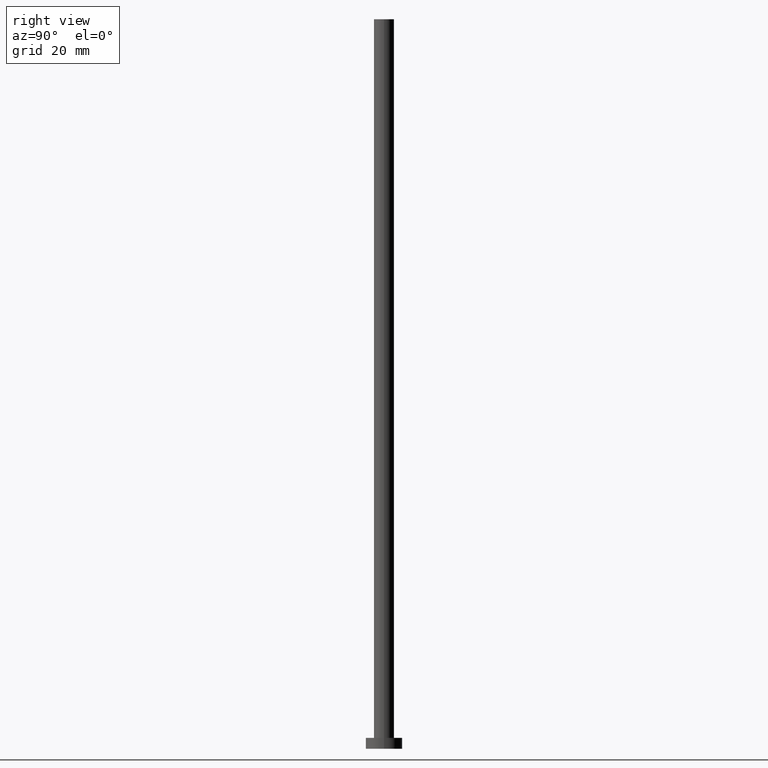
[diagram: clean part render]
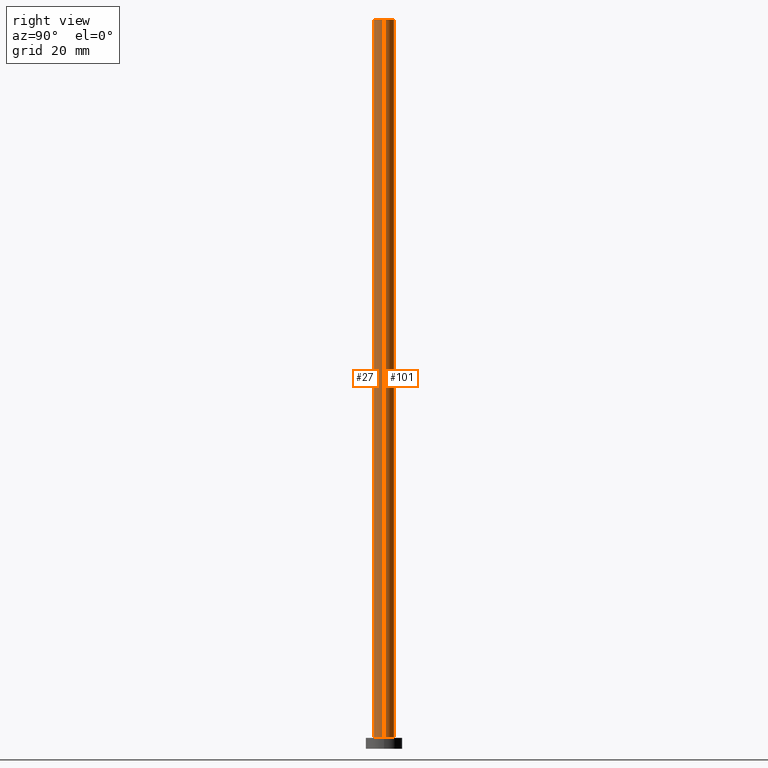
[diagram: same view with one multi-face feature highlighted, each face labeled with its STEP entity id]
A machine part, right view. The highlighted faces form ONE feature: a constant-radius fillet chain: 2 tangent blend faces with common blend radius 2.75 mm. The faces share edges in the B-rep.
Their STEP definitions:
[1] entity #27 (Cylinder):
#13 = VERTEX_POINT ( 'NONE', #36 ) ;
#22 = LINE ( 'NONE', #212, #145 ) ;
#27 = ADVANCED_FACE ( 'NONE', ( #175 ), #73, .T. ) ;
#31 = ORIENTED_EDGE ( 'NONE', *, *, #120, .F. ) ;
#36 = CARTESIAN_POINT ( 'NONE',  ( -2.750000000000000000, 0.000000000000000000, 3.000000000000000000 ) ) ;
#37 = VECTOR ( 'NONE', #95, 1000.000000000000000 ) ;
#39 = AXIS2_PLACEMENT_3D ( 'NONE', #97, #117, #158 ) ;
#41 = DIRECTION ( 'NONE',  ( -0.000000000000000000, -0.000000000000000000, -1.000000000000000000 ) ) ;
#42 = DIRECTION ( 'NONE',  ( 1.000000000000000000, 0.000000000000000000, 0.000000000000000000 ) ) ;
#52 = VERTEX_POINT ( 'NONE', #110 ) ;
#56 = LINE ( 'NONE', #230, #37 ) ;
#58 = CARTESIAN_POINT ( 'NONE',  ( -2.750000000000000000, 0.000000000000000000, 200.0000000000000000 ) ) ;
#61 = CIRCLE ( 'NONE', #112, 2.750000000000000000 ) ;
#73 = CYLINDRICAL_SURFACE ( 'NONE', #245, 2.750000000000000000 ) ;
#79 = CARTESIAN_POINT ( 'NONE',  ( 0.000000000000000000, 0.000000000000000000, 200.0000000000000000 ) ) ;
#85 = ORIENTED_EDGE ( 'NONE', *, *, #197, .T. ) ;
#87 = VERTEX_POINT ( 'NONE', #58 ) ;
#95 = DIRECTION ( 'NONE',  ( -0.000000000000000000, -0.000000000000000000, -1.000000000000000000 ) ) ;
#97 = CARTESIAN_POINT ( 'NONE',  ( 0.000000000000000000, 0.000000000000000000, 3.000000000000000000 ) ) ;
#105 = DIRECTION ( 'NONE',  ( -0.000000000000000000, -0.000000000000000000, -1.000000000000000000 ) ) ;
#108 = EDGE_CURVE ( 'NONE', #87, #52, #61, .T. ) ;
#109 = VERTEX_POINT ( 'NONE', #153 ) ;
#110 = CARTESIAN_POINT ( 'NONE',  ( 2.750000000000000000, 3.367778697655221012E-16, 200.0000000000000000 ) ) ;
#112 = AXIS2_PLACEMENT_3D ( 'NONE', #79, #115, #42 ) ;
#114 = CIRCLE ( 'NONE', #39, 2.750000000000000000 ) ;
#115 = DIRECTION ( 'NONE',  ( 0.000000000000000000, 0.000000000000000000, 1.000000000000000000 ) ) ;
#117 = DIRECTION ( 'NONE',  ( 0.000000000000000000, 0.000000000000000000, 1.000000000000000000 ) ) ;
#120 = EDGE_CURVE ( 'NONE', #52, #109, #56, .T. ) ;
#145 = VECTOR ( 'NONE', #41, 1000.000000000000000 ) ;
#147 = DIRECTION ( 'NONE',  ( -1.000000000000000000, 0.000000000000000000, 0.000000000000000000 ) ) ;
#148 = EDGE_LOOP ( 'NONE', ( #31, #205, #85, #225 ) ) ;
#150 = CARTESIAN_POINT ( 'NONE',  ( 0.000000000000000000, 0.000000000000000000, 200.0000000000000000 ) ) ;
#153 = CARTESIAN_POINT ( 'NONE',  ( 2.750000000000000000, 3.367778697655221012E-16, 3.000000000000000000 ) ) ;
#158 = DIRECTION ( 'NONE',  ( 1.000000000000000000, 0.000000000000000000, 0.000000000000000000 ) ) ;
#175 = FACE_OUTER_BOUND ( 'NONE', #148, .T. ) ;
#197 = EDGE_CURVE ( 'NONE', #87, #13, #22, .T. ) ;
#205 = ORIENTED_EDGE ( 'NONE', *, *, #108, .F. ) ;
#209 = EDGE_CURVE ( 'NONE', #13, #109, #114, .T. ) ;
#212 = CARTESIAN_POINT ( 'NONE',  ( -2.750000000000000000, 0.000000000000000000, 200.0000000000000000 ) ) ;
#225 = ORIENTED_EDGE ( 'NONE', *, *, #209, .T. ) ;
#230 = CARTESIAN_POINT ( 'NONE',  ( 2.750000000000000000, 3.367778697655221012E-16, 200.0000000000000000 ) ) ;
#245 = AXIS2_PLACEMENT_3D ( 'NONE', #150, #105, #147 ) ;
[2] entity #101 (Cylinder):
#13 = VERTEX_POINT ( 'NONE', #36 ) ;
#22 = LINE ( 'NONE', #212, #145 ) ;
#36 = CARTESIAN_POINT ( 'NONE',  ( -2.750000000000000000, 0.000000000000000000, 3.000000000000000000 ) ) ;
#37 = VECTOR ( 'NONE', #95, 1000.000000000000000 ) ;
#41 = DIRECTION ( 'NONE',  ( -0.000000000000000000, -0.000000000000000000, -1.000000000000000000 ) ) ;
#52 = VERTEX_POINT ( 'NONE', #110 ) ;
#54 = ORIENTED_EDGE ( 'NONE', *, *, #120, .T. ) ;
#56 = LINE ( 'NONE', #230, #37 ) ;
#58 = CARTESIAN_POINT ( 'NONE',  ( -2.750000000000000000, 0.000000000000000000, 200.0000000000000000 ) ) ;
#69 = EDGE_CURVE ( 'NONE', #52, #87, #135, .T. ) ;
#76 = CARTESIAN_POINT ( 'NONE',  ( 0.000000000000000000, 0.000000000000000000, 200.0000000000000000 ) ) ;
#77 = AXIS2_PLACEMENT_3D ( 'NONE', #76, #133, #78 ) ;
#78 = DIRECTION ( 'NONE',  ( -1.000000000000000000, 0.000000000000000000, 0.000000000000000000 ) ) ;
#83 = ORIENTED_EDGE ( 'NONE', *, *, #69, .F. ) ;
#87 = VERTEX_POINT ( 'NONE', #58 ) ;
#89 = ORIENTED_EDGE ( 'NONE', *, *, #221, .T. ) ;
#93 = FACE_OUTER_BOUND ( 'NONE', #168, .T. ) ;
#95 = DIRECTION ( 'NONE',  ( -0.000000000000000000, -0.000000000000000000, -1.000000000000000000 ) ) ;
#98 = DIRECTION ( 'NONE',  ( 0.000000000000000000, 0.000000000000000000, 1.000000000000000000 ) ) ;
#101 = ADVANCED_FACE ( 'NONE', ( #93 ), #250, .T. ) ;
#107 = AXIS2_PLACEMENT_3D ( 'NONE', #191, #98, #179 ) ;
#109 = VERTEX_POINT ( 'NONE', #153 ) ;
#110 = CARTESIAN_POINT ( 'NONE',  ( 2.750000000000000000, 3.367778697655221012E-16, 200.0000000000000000 ) ) ;
#120 = EDGE_CURVE ( 'NONE', #52, #109, #56, .T. ) ;
#133 = DIRECTION ( 'NONE',  ( -0.000000000000000000, -0.000000000000000000, -1.000000000000000000 ) ) ;
#135 = CIRCLE ( 'NONE', #182, 2.750000000000000000 ) ;
#145 = VECTOR ( 'NONE', #41, 1000.000000000000000 ) ;
#153 = CARTESIAN_POINT ( 'NONE',  ( 2.750000000000000000, 3.367778697655221012E-16, 3.000000000000000000 ) ) ;
#155 = DIRECTION ( 'NONE',  ( 1.000000000000000000, 0.000000000000000000, 0.000000000000000000 ) ) ;
#167 = CIRCLE ( 'NONE', #107, 2.750000000000000000 ) ;
#168 = EDGE_LOOP ( 'NONE', ( #83, #54, #89, #206 ) ) ;
#179 = DIRECTION ( 'NONE',  ( 1.000000000000000000, 0.000000000000000000, 0.000000000000000000 ) ) ;
#180 = DIRECTION ( 'NONE',  ( 0.000000000000000000, 0.000000000000000000, 1.000000000000000000 ) ) ;
#182 = AXIS2_PLACEMENT_3D ( 'NONE', #185, #180, #155 ) ;
#185 = CARTESIAN_POINT ( 'NONE',  ( 0.000000000000000000, 0.000000000000000000, 200.0000000000000000 ) ) ;
#191 = CARTESIAN_POINT ( 'NONE',  ( 0.000000000000000000, 0.000000000000000000, 3.000000000000000000 ) ) ;
#197 = EDGE_CURVE ( 'NONE', #87, #13, #22, .T. ) ;
#206 = ORIENTED_EDGE ( 'NONE', *, *, #197, .F. ) ;
#212 = CARTESIAN_POINT ( 'NONE',  ( -2.750000000000000000, 0.000000000000000000, 200.0000000000000000 ) ) ;
#221 = EDGE_CURVE ( 'NONE', #109, #13, #167, .T. ) ;
#230 = CARTESIAN_POINT ( 'NONE',  ( 2.750000000000000000, 3.367778697655221012E-16, 200.0000000000000000 ) ) ;
#250 = CYLINDRICAL_SURFACE ( 'NONE', #77, 2.750000000000000000 ) ;